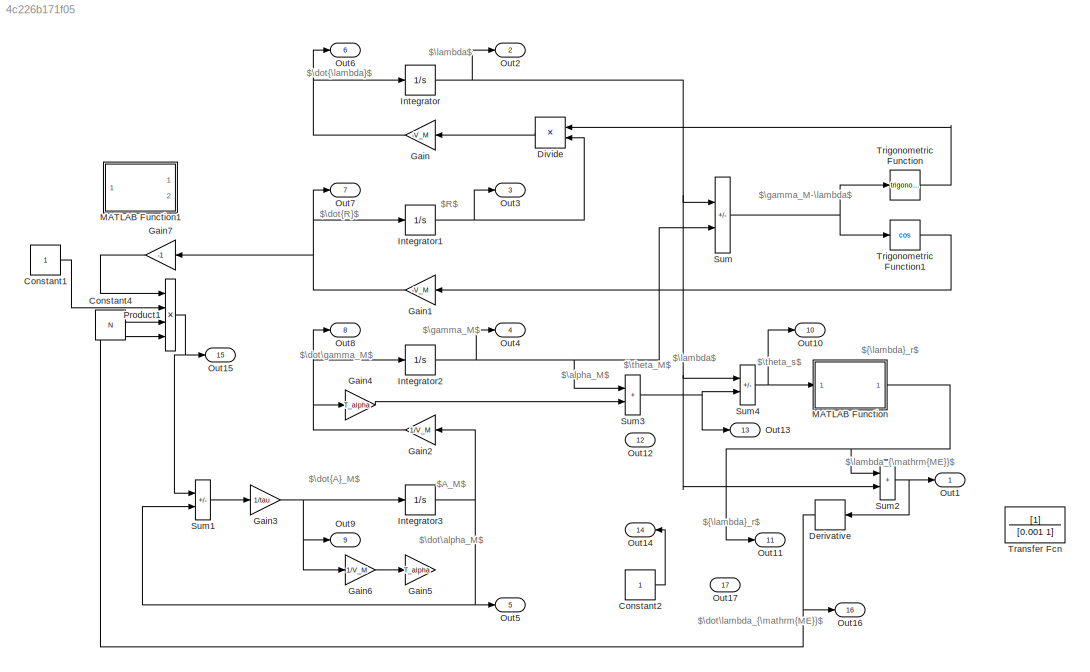
MODEL slx_4c226b171f05
KIND model
CONFIG AbsTol = auto
CONFIG EnableMultiTasking = off
CONFIG FixedStep = 0.001
CONFIG MaxStep = auto
CONFIG MinStep = auto
CONFIG RelTol = 1e-3
CONFIG SampleTimeConstraint = Unconstrained
CONFIG Solver = FixedStepAuto
CONFIG SolverName = FixedStepAuto
CONFIG StartTime = 0.0
CONFIG StopTime = 20
BLOCK [Constant] Constant1
BLOCK [Constant] Constant2
BLOCK [Constant] Constant4
  Value = N
BLOCK [Derivative] Derivative
BLOCK [Product] Divide
  Inputs = */
  Ports = [2, 1]
BLOCK [Gain] Gain
  Gain = -V_M
BLOCK [Gain] Gain1
  Gain = -V_M
BLOCK [Gain] Gain2
  Gain = 1/V_M
BLOCK [Gain] Gain3
  Gain = 1/tau
BLOCK [Gain] Gain4
  Gain = T_alpha
BLOCK [Gain] Gain5
  Gain = T_alpha
BLOCK [Gain] Gain6
  Gain = 1/V_M
BLOCK [Gain] Gain7
  Gain = -1
BLOCK [Integrator] Integrator
  InitialCondition = lambda_0
  Ports = [1, 1]
BLOCK [Integrator] Integrator1
  InitialCondition = R_0
  Ports = [1, 1]
BLOCK [Integrator] Integrator2
  InitialCondition = gamma_M_0
  Ports = [1, 1]
BLOCK [Integrator] Integrator3
  Ports = [1, 1]
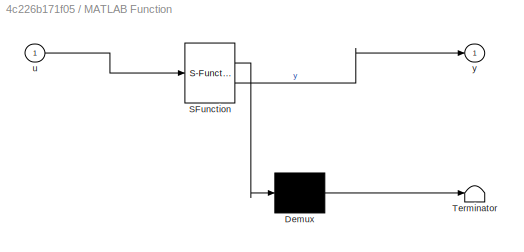
BLOCK [SubSystem] MATLAB Function
  ErrorFcn = Stateflow.Translate.translate
  NameLocation = top
  PermitHierarchicalResolution = ExplicitOnly
  Ports = [1, 1]
  RequestExecContextInheritance = off
  SFBlockType = MATLAB Function
  TreatAsAtomicUnit = on
BLOCK [Demux] MATLAB Function/ Demux 
  Outputs = 1
  Ports = [1, 1]
BLOCK [S-Function] MATLAB Function/ SFunction 
  EnableBusSupport = on
  FunctionName = sf_sfun
  PortCounts = [1 2]
  Ports = [1, 2]
  SFcnIsStateOwnerBlock = off
  SFunctionDeploymentMode = off
  Tag = Stateflow S-Function 2
BLOCK [Terminator] MATLAB Function/ Terminator 
BLOCK [Inport] MATLAB Function/u
BLOCK [Outport] MATLAB Function/y
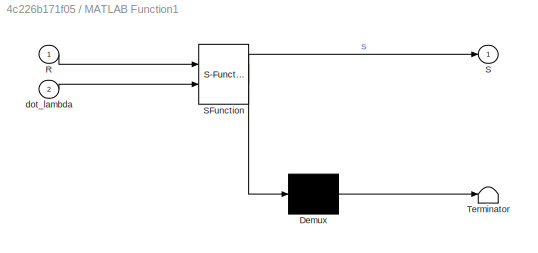
BLOCK [SubSystem] MATLAB Function1
  ErrorFcn = Stateflow.Translate.translate
  PermitHierarchicalResolution = ExplicitOnly
  Ports = [2, 1]
  RequestExecContextInheritance = off
  SFBlockType = MATLAB Function
  TreatAsAtomicUnit = on
BLOCK [Demux] MATLAB Function1/ Demux 
  Outputs = 1
  Ports = [1, 1]
BLOCK [S-Function] MATLAB Function1/ SFunction 
  EnableBusSupport = on
  FunctionName = sf_sfun
  PortCounts = [2 2]
  Ports = [2, 2]
  SFcnIsStateOwnerBlock = off
  SFunctionDeploymentMode = off
  Tag = Stateflow S-Function 1
BLOCK [Terminator] MATLAB Function1/ Terminator 
BLOCK [Inport] MATLAB Function1/R
BLOCK [Outport] MATLAB Function1/S
BLOCK [Inport] MATLAB Function1/dot_lambda
  Port = 2
BLOCK [Outport] Out1
BLOCK [Outport] Out10
  Port = 10
BLOCK [Outport] Out11
  Port = 11
BLOCK [Outport] Out12
  Port = 12
BLOCK [Outport] Out13
  Port = 13
BLOCK [Outport] Out14
  Port = 14
BLOCK [Outport] Out15
  Port = 15
BLOCK [Outport] Out16
  Port = 16
BLOCK [Outport] Out17
  Port = 17
BLOCK [Outport] Out2
  Port = 2
BLOCK [Outport] Out3
  Port = 3
BLOCK [Outport] Out4
  Port = 4
BLOCK [Outport] Out5
  Port = 5
BLOCK [Outport] Out6
  Port = 6
BLOCK [Outport] Out7
  Port = 7
BLOCK [Outport] Out8
  Port = 8
BLOCK [Outport] Out9
  Port = 9
BLOCK [Product] Product1
  Inputs = 4
  Ports = [4, 1]
BLOCK [Sum] Sum
  IconShape = rectangular
  Inputs = -+
  Ports = [2, 1]
BLOCK [Sum] Sum1
  IconShape = rectangular
  Inputs = +-
  Ports = [2, 1]
BLOCK [Sum] Sum2
  IconShape = rectangular
  Ports = [2, 1]
BLOCK [Sum] Sum3
  IconShape = rectangular
  Ports = [2, 1]
BLOCK [Sum] Sum4
  IconShape = rectangular
  Inputs = +-
  Ports = [2, 1]
BLOCK [TransferFcn] Transfer Fcn
  Denominator = [0.001 1]
BLOCK [Trigonometry] Trigonometric Function
  Ports = [1, 1]
BLOCK [Trigonometry] Trigonometric Function1
  Operator = cos
  Ports = [1, 1]
ANNOTATION (root): $A_M$
ANNOTATION (root): $R$
ANNOTATION (root): $\alpha_M$
ANNOTATION (root): $\dot\alpha_M$
ANNOTATION (root): $\dot\gamma_M$
ANNOTATION (root): $\dot\lambda_{\mathrm{ME}}$
ANNOTATION (root): $\dot{A}_M$
ANNOTATION (root): $\dot{R}$
ANNOTATION (root): $\dot{\lambda}$
ANNOTATION (root): $\gamma_M$
ANNOTATION (root): $\gamma_M-\lambda$
ANNOTATION (root): $\lambda$
ANNOTATION (root): $\lambda_{\mathrm{ME}}$
ANNOTATION (root): $\theta_M$
ANNOTATION (root): $\theta_s$
ANNOTATION (root): ${\lambda}_r$
LINE Constant1:1 -> Product1:2
LINE Constant2:1 -> Out14:1
LINE Constant4:1 -> Product1:3
NET Derivative:1 -> Out16:1, Product1:4
LINE Divide:1 -> Gain:1
NET Gain1:1 -> Gain7:1, Integrator1:1, Out7:1
NET Gain2:1 -> Gain4:1, Integrator2:1, Out8:1
NET Gain3:1 -> Gain6:1, Integrator3:1, Out9:1
LINE Gain4:1 -> Sum3:2
LINE Gain6:1 -> Gain5:1
LINE Gain7:1 -> Product1:1
NET Gain:1 -> Integrator:1, Out6:1
NET Integrator1:1 -> Divide:2, Out3:1
NET Integrator2:1 -> Out4:1, Sum3:1, Sum:2
NET Integrator3:1 -> Gain2:1, Out5:1, Sum1:2
NET Integrator:1 -> Out2:1, Sum2:2, Sum4:1, Sum:1
NET MATLAB Function:1 -> Out11:1, Sum2:1
NET Product1:1 -> Out15:1, Sum1:1
LINE Sum1:1 -> Gain3:1
NET Sum2:1 -> Derivative:1, Out1:1
NET Sum3:1 -> Out13:1, Sum4:2
NET Sum4:1 -> MATLAB Function:1, Out10:1
NET Sum:1 -> Trigonometric Function1:1, Trigonometric Function:1
LINE Trigonometric Function1:1 -> Gain1:1
LINE Trigonometric Function:1 -> Divide:1
note: NET lines group one-source signal fan-out (src -> all destinations, sorted); 1:1 wires keep LINE
CHART MATLAB Function states=1 transitions=1
  STATE_LABEL 'eML_blk_kernel()'
  STATE_LABEL 'SCRIPT:\nfunction y = fcn(u)\n\n%%\nr=deg2rad(-0.5);\nzeta=4;\np=1;\ny=r*exp(-zeta*abs(u))*sin(2*pi/p*u);\n\n% if u<0\n%     a=exp(zeta*u);\n%     b=zeta*sin(2*pi*u/p);\n%     c=2*pi/p*cos(2*pi*u/p);\n% else\n%     a=exp(-zeta*u);\n%     b=-zeta*sin(2*pi*u/p);\n%     c=2*pi/p*cos(2*pi*u/p);\n% end\n% \n% y=r*a*(b+c);\n% y=y/rad2deg(1);\n\n%%\n% y=0.025;\n% y=0.05;\n% y=-0.025;'
CHART MATLAB Function1 states=1 transitions=1
  STATE_LABEL 'eML_blk_kernel()'
  STATE_LABEL 'SCRIPT:\nfunction S = fcn(R,dot_lambda)\n\nk = 0.5;\nR_0 = 10050;\npersistent i miu_L miu_U S_previous\n\nif isempty(i)\n    i=1;\nelse\n    i=i+1;\nend\n\nif isempty(miu_L)\n    miu_L = deg2rad(0.5)/R_0^k;\nend\n\nif isempty(miu_U)\n    miu_U = deg2rad(1.5)/R_0^k;\nend\n\ndot_lambda_L = miu_L * R^k;\ndot_lambda_U = miu_L * R^k;\n\nif isempty(S_previous)\n    if abs(dot_lambda)>dot_lambda_L\n        S = 0;\n    else\n       ...<+279ch>'
CHART  states=0 transitions=0
CHART  states=0 transitions=0
